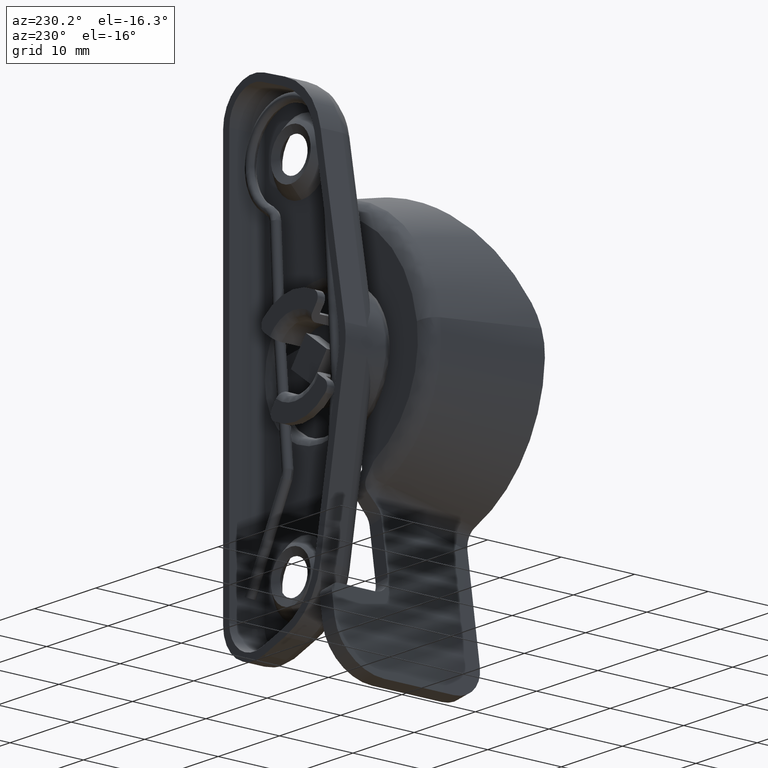
[diagram: clean part render]
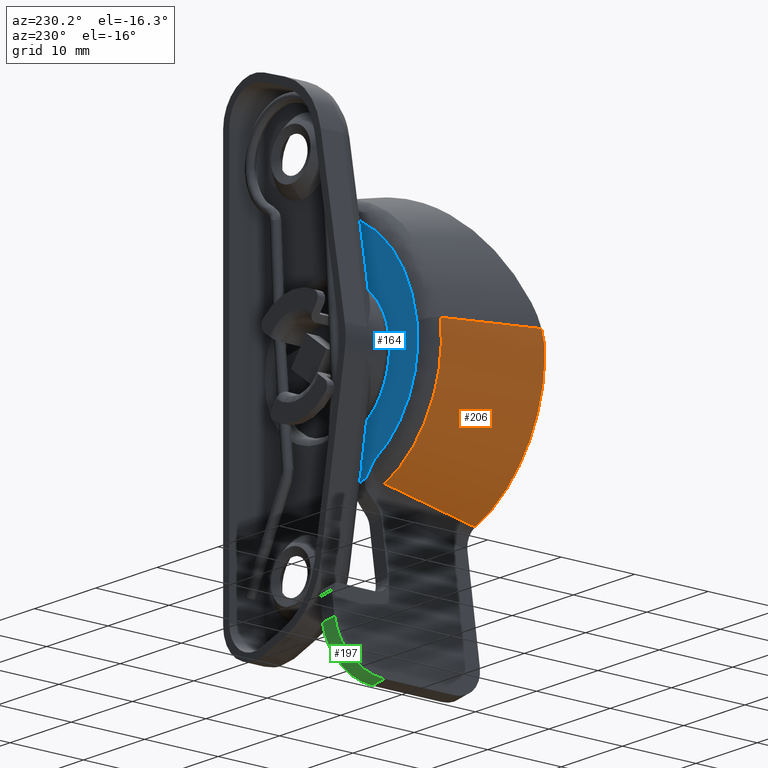
[diagram: same view with three faces highlighted in distinct colors, each labeled with its STEP entity id]
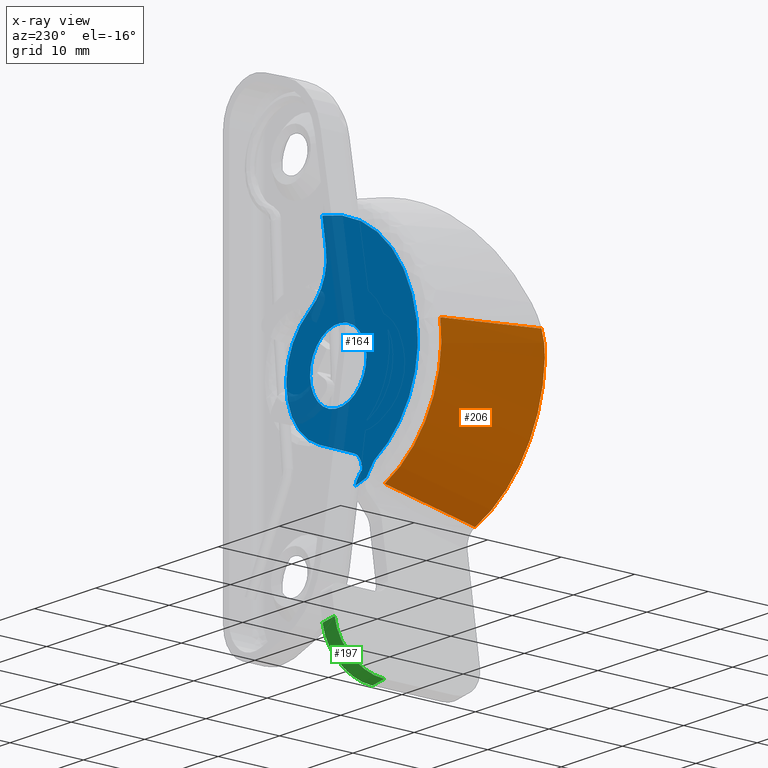
[diagram: x-ray of the same camera — body ghosted, the three highlighted faces saturated]
A machine part, auxiliary view with three faces highlighted in distinct colors.
The next image is the same camera in x-ray (body ghosted, the three faces saturated) — at least one of them is partly hidden behind the body in this view.
Their STEP definitions:

[orange] entity #206 — the highlighted face is a freeform B-spline surface patch.
#206=ADVANCED_FACE('',(#907),#906,.T.);
#906=( BOUNDED_SURFACE() B_SPLINE_SURFACE( 2,1,((#2604,#2605),(#2606,#2607),(#2608,#2609)), .UNSPECIFIED.,.F.,.F.,.F.) B_SPLINE_SURFACE_WITH_KNOTS((3,3),(2,2),(0.00000000000E+00,1.00000000000E+00),(0.00000000000E+00,1.00000000000E+00), .UNSPECIFIED. ) GEOMETRIC_REPRESENTATION_ITEM() RATIONAL_B_SPLINE_SURFACE(((1.00000000000E+00,1.00000000000E+00),(7.74811238974E-01,7.74811238974E-01),(1.00000000000E+00,1.00000000000E+00))) REPRESENTATION_ITEM('') SURFACE() );
#907=FACE_OUTER_BOUND('',#2610,.T.);
#2604=CARTESIAN_POINT('',(-3.67806467886E+01,4.24859288662E-01,2.27269576020E+00));
#2605=CARTESIAN_POINT('',(-3.93429418741E+01,-1.15002167399E+01,2.66667832811E+00));
#2606=CARTESIAN_POINT('',(-3.86350101201E+01,4.24859288662E-01,-9.78729480239E+00));
#2607=CARTESIAN_POINT('',(-4.15187678668E+01,-1.15002167399E+01,-1.14839686849E+01));
#2608=CARTESIAN_POINT('',(-2.71924261746E+01,4.24859288662E-01,-1.40239572136E+01));
#2609=CARTESIAN_POINT('',(-2.80925578305E+01,-1.15002167399E+01,-1.64550765795E+01));
#2610=EDGE_LOOP('',(#4199,#4200,#4201,#4202,#4203,#4204,#4205));
#4199=ORIENTED_EDGE('',*,*,#4860,.T.);
#4200=ORIENTED_EDGE('',*,*,#4811,.F.);
#4201=ORIENTED_EDGE('',*,*,#4806,.T.);
#4202=ORIENTED_EDGE('',*,*,#4999,.F.);
#4203=ORIENTED_EDGE('',*,*,#4879,.F.);
#4204=ORIENTED_EDGE('',*,*,#5000,.F.);
#4205=ORIENTED_EDGE('',*,*,#4817,.F.);
#4806=EDGE_CURVE('',#5286,#5279,#5287,.T.);
#4811=EDGE_CURVE('',#5286,#5319,#5320,.T.);
#4817=EDGE_CURVE('',#5354,#5361,#5362,.T.);
#4860=EDGE_CURVE('',#5354,#5319,#5651,.T.);
#4879=EDGE_CURVE('',#5770,#5437,#5777,.T.);
#4999=EDGE_CURVE('',#5437,#5279,#6583,.T.);
#5000=EDGE_CURVE('',#5361,#5770,#6589,.T.);
#5279=VERTEX_POINT('',#8317);
#5286=VERTEX_POINT('',#8322);
#5287=LINE('',#8323,#8324);
#5319=VERTEX_POINT('',#8365);
#5320=(BOUNDED_CURVE() B_SPLINE_CURVE(3,(#8366,#8367,#8368,#8369),.UNSPECIFIED.,.F.,.F.) B_SPLINE_CURVE_WITH_KNOTS((4,4),(0.00000000000E+00,3.22298693052E-03),.UNSPECIFIED.) CURVE() GEOMETRIC_REPRESENTATION_ITEM() RATIONAL_B_SPLINE_CURVE((1.00000000000E+00,1.00000000000E+00,1.00000000000E+00,1.00000000000E+00)) REPRESENTATION_ITEM('') );
#5354=VERTEX_POINT('',#8390);
#5361=VERTEX_POINT('',#8401);
#5362=(BOUNDED_CURVE() B_SPLINE_CURVE(3,(#8402,#8403,#8404,#8405,#8406,#8407,#8408),.UNSPECIFIED.,.F.,.F.) B_SPLINE_CURVE_WITH_KNOTS((4,3,4),(0.00000000000E+00,4.00000012331E-03,1.17560993783E-02),.UNSPECIFIED.) CURVE() GEOMETRIC_REPRESENTATION_ITEM() RATIONAL_B_SPLINE_CURVE((1.00000000000E+00,1.00000000000E+00,1.00000000000E+00,1.00000000000E+00,1.00000000000E+00,1.00000000000E+00,1.00000000000E+00)) REPRESENTATION_ITEM('') );
#5437=VERTEX_POINT('',#8463);
#5651=CIRCLE('',#8652,1.75467134428E+01);
#5770=VERTEX_POINT('',#8743);
#5777=(BOUNDED_CURVE() B_SPLINE_CURVE(3,(#8748,#8749,#8750,#8751),.UNSPECIFIED.,.F.,.F.) B_SPLINE_CURVE_WITH_KNOTS((4,4),(0.00000000000E+00,3.72828461256E-04),.UNSPECIFIED.) CURVE() GEOMETRIC_REPRESENTATION_ITEM() RATIONAL_B_SPLINE_CURVE((1.00000000000E+00,1.00000000000E+00,1.00000000000E+00,1.00000000000E+00)) REPRESENTATION_ITEM('') );
#6583=CIRCLE('',#9248,1.49543527278E+01);
#6589=(BOUNDED_CURVE() B_SPLINE_CURVE(3,(#9249,#9250,#9251,#9252),.UNSPECIFIED.,.F.,.F.) B_SPLINE_CURVE_WITH_KNOTS((4,4),(0.00000000000E+00,8.52196618869E-05),.UNSPECIFIED.) CURVE() GEOMETRIC_REPRESENTATION_ITEM() RATIONAL_B_SPLINE_CURVE((1.00000000000E+00,1.00000000000E+00,1.00000000000E+00,1.00000000000E+00)) REPRESENTATION_ITEM('') );
#8317=CARTESIAN_POINT('',(-3.67807867464E+01,4.24859288662E-01,2.27178534791E+00));
#8322=CARTESIAN_POINT('',(-3.92898662316E+01,-1.12524375512E+01,2.65742720236E+00));
#8323=CARTESIAN_POINT('',(-3.92898662316E+01,-1.12524375512E+01,2.65742720236E+00));
#8324=VECTOR('',#8325,1.19500402087E+01);
#8325=DIRECTION('',(2.09964104004E-01,9.77176363923E-01,-3.22711763071E-02));
#8365=CARTESIAN_POINT('',(-3.95382031403E+01,-1.15000000000E+01,-5.46427720702E-01));
#8366=CARTESIAN_POINT('',(-3.92898662316E+01,-1.12524375512E+01,2.65742720236E+00));
#8367=CARTESIAN_POINT('',(-3.94888023321E+01,-1.14216001621E+01,1.60517394933E+00));
#8368=CARTESIAN_POINT('',(-3.95719567874E+01,-1.15000000000E+01,5.36932984192E-01));
#8369=CARTESIAN_POINT('',(-3.95382031403E+01,-1.15000000000E+01,-5.46427720702E-01));
#8390=CARTESIAN_POINT('',(-2.81662821626E+01,-1.15000000000E+01,-1.64275414148E+01));
#8401=CARTESIAN_POINT('',(-2.77216384993E+01,-2.26717670756E-02,-1.39217377659E+01));
#8402=CARTESIAN_POINT('',(-2.81662821626E+01,-1.15000000000E+01,-1.64275414148E+01));
#8403=CARTESIAN_POINT('',(-2.81167894239E+01,-1.01981422255E+01,-1.61438255515E+01));
#8404=CARTESIAN_POINT('',(-2.80670187797E+01,-8.89632667037E+00,-1.58599642118E+01));
#8405=CARTESIAN_POINT('',(-2.80169309206E+01,-7.59455908691E+00,-1.55759391207E+01));
#8406=CARTESIAN_POINT('',(-2.79198093366E+01,-5.07039990329E+00,-1.50252075220E+01));
#8407=CARTESIAN_POINT('',(-2.78215037826E+01,-2.54641926814E+00,-1.44738636176E+01));
#8408=CARTESIAN_POINT('',(-2.77216384993E+01,-2.26717670756E-02,-1.39217377659E+01));
#8463=CARTESIAN_POINT('',(-2.76859719750E+01,4.24859288662E-01,-1.38312106559E+01));
#8649=CARTESIAN_POINT('',(-2.20000000000E+01,-1.15000000000E+01,0.00000000000E+00));
#8650=DIRECTION('',(0.00000000000E+00,1.00000000000E+00,0.00000000000E+00));
#8651=DIRECTION('',(1.51914655832E-01,-0.00000000000E+00,9.88393614580E-01));
#8652=AXIS2_PLACEMENT_3D('',#8649,#8650,#8651);
#8743=CARTESIAN_POINT('',(-2.77177183147E+01,6.05441933558E-02,-1.39037898731E+01));
#8748=CARTESIAN_POINT('',(-2.77177183147E+01,6.05441933558E-02,-1.39037898731E+01));
#8749=CARTESIAN_POINT('',(-2.77111138899E+01,1.82002374544E-01,-1.38779564172E+01));
#8750=CARTESIAN_POINT('',(-2.77006443813E+01,3.03441407392E-01,-1.38537174431E+01));
#8751=CARTESIAN_POINT('',(-2.76859719750E+01,4.24859288662E-01,-1.38312106559E+01));
#9245=CARTESIAN_POINT('',(-2.20000000000E+01,4.24859288662E-01,0.00000000000E+00));
#9246=DIRECTION('',(-0.00000000000E+00,1.00000000000E+00,0.00000000000E+00));
#9247=DIRECTION('',(-1.51914655832E-01,-0.00000000000E+00,-9.88393614580E-01));
#9248=AXIS2_PLACEMENT_3D('',#9245,#9246,#9247);
#9249=CARTESIAN_POINT('',(-2.77216384993E+01,-2.26717670756E-02,-1.39217377659E+01));
#9250=CARTESIAN_POINT('',(-2.77205412355E+01,5.05775706139E-03,-1.39156713162E+01));
#9251=CARTESIAN_POINT('',(-2.77192270241E+01,3.27983848120E-02,-1.39096912469E+01));
#9252=CARTESIAN_POINT('',(-2.77177183147E+01,6.05441933558E-02,-1.39037898731E+01));

[blue] entity #164 — the highlighted planar face has unit normal (0, 1, 0).
#164=ADVANCED_FACE('',(#483,#484),#482,.T.);
#482=PLANE('',#2359);
#483=FACE_OUTER_BOUND('',#2360,.T.);
#484=FACE_BOUND('',#2361,.T.);
#2356=CARTESIAN_POINT('',(-3.95886803783E+01,2.00000000000E+00,-1.45502739872E+01));
#2357=DIRECTION('',(-0.00000000000E+00,1.00000000000E+00,0.00000000000E+00));
#2358=DIRECTION('',(1.51914655832E-01,0.00000000000E+00,9.88393614580E-01));
#2359=AXIS2_PLACEMENT_3D('',#2356,#2357,#2358);
#2360=EDGE_LOOP('',(#3979,#3980,#3981,#3982,#3983,#3984,#3985,#3986,#3987,#3988,#3989));
#2361=EDGE_LOOP('',(#3990,#3991));
#3979=ORIENTED_EDGE('',*,*,#4867,.F.);
#3980=ORIENTED_EDGE('',*,*,#4839,.F.);
#3981=ORIENTED_EDGE('',*,*,#4856,.T.);
#3982=ORIENTED_EDGE('',*,*,#4868,.F.);
#3983=ORIENTED_EDGE('',*,*,#4869,.T.);
#3984=ORIENTED_EDGE('',*,*,#4870,.F.);
#3985=ORIENTED_EDGE('',*,*,#4871,.F.);
#3986=ORIENTED_EDGE('',*,*,#4872,.F.);
#3987=ORIENTED_EDGE('',*,*,#4832,.F.);
#3988=ORIENTED_EDGE('',*,*,#4830,.F.);
#3989=ORIENTED_EDGE('',*,*,#4826,.F.);
#3990=ORIENTED_EDGE('',*,*,#4873,.T.);
#3991=ORIENTED_EDGE('',*,*,#4874,.T.);
#4826=EDGE_CURVE('',#5423,#5424,#5425,.T.);
#4830=EDGE_CURVE('',#5424,#5450,#5451,.T.);
#4832=EDGE_CURVE('',#5450,#5463,#5464,.T.);
#4839=EDGE_CURVE('',#5504,#5511,#5512,.T.);
#4856=EDGE_CURVE('',#5504,#5620,#5627,.T.);
#4867=EDGE_CURVE('',#5511,#5423,#5697,.T.);
#4868=EDGE_CURVE('',#5703,#5620,#5704,.T.);
#4869=EDGE_CURVE('',#5703,#5710,#5711,.T.);
#4870=EDGE_CURVE('',#5717,#5710,#5718,.T.);
#4871=EDGE_CURVE('',#5724,#5717,#5725,.T.);
#4872=EDGE_CURVE('',#5463,#5724,#5731,.T.);
#4873=EDGE_CURVE('',#5737,#5738,#5739,.T.);
#4874=EDGE_CURVE('',#5738,#5737,#5745,.T.);
#5423=VERTEX_POINT('',#8447);
#5424=VERTEX_POINT('',#8448);
#5425=(BOUNDED_CURVE() B_SPLINE_CURVE(3,(#8449,#8450,#8451,#8452),.UNSPECIFIED.,.F.,.F.) B_SPLINE_CURVE_WITH_KNOTS((4,4),(-1.98115376108E-03,-0.00000000000E+00),.UNSPECIFIED.) CURVE() GEOMETRIC_REPRESENTATION_ITEM() RATIONAL_B_SPLINE_CURVE((1.00000000000E+00,1.00000000000E+00,1.00000000000E+00,1.00000000000E+00)) REPRESENTATION_ITEM('') );
#5450=VERTEX_POINT('',#8484);
#5451=CIRCLE('',#8488,1.39595795182E+01);
#5463=VERTEX_POINT('',#8495);
#5464=(BOUNDED_CURVE() B_SPLINE_CURVE(3,(#8496,#8497,#8498,#8499,#8500,#8501,#8502,#8503),.UNSPECIFIED.,.F.,.F.) B_SPLINE_CURVE_WITH_KNOTS((4,2,2,4),(7.43523292652E-04,1.21947824087E-03,1.69543318910E-03,2.64734308554E-03),.UNSPECIFIED.) CURVE() GEOMETRIC_REPRESENTATION_ITEM() RATIONAL_B_SPLINE_CURVE((1.00000000000E+00,1.00000000000E+00,1.00000000000E+00,1.00000000000E+00,1.00000000000E+00,1.00000000000E+00,1.00000000000E+00,1.00000000000E+00)) REPRESENTATION_ITEM('') );
#5504=VERTEX_POINT('',#8547);
#5511=VERTEX_POINT('',#8558);
#5512=CIRCLE('',#8562,1.78000000000E+01);
#5620=VERTEX_POINT('',#8632);
#5627=LINE('',#8636,#8637);
#5697=CIRCLE('',#8680,1.30000000000E+01);
#5703=VERTEX_POINT('',#8681);
#5704=CIRCLE('',#8685,6.00000000000E+00);
#5710=VERTEX_POINT('',#8686);
#5711=CIRCLE('',#8690,8.50000000000E+00);
#5717=VERTEX_POINT('',#8691);
#5718=LINE('',#8692,#8693);
#5724=VERTEX_POINT('',#8695);
#5725=CIRCLE('',#8699,2.00000000000E+00);
#5731=LINE('',#8700,#8701);
#5737=VERTEX_POINT('',#8703);
#5738=VERTEX_POINT('',#8704);
#5739=CIRCLE('',#8708,4.60000000000E+00);
#5745=CIRCLE('',#8712,4.60000000000E+00);
#8447=CARTESIAN_POINT('',(-2.78211669948E+01,2.00000000000E+00,-1.16238554197E+01));
#8448=CARTESIAN_POINT('',(-2.65956760878E+01,2.00000000000E+00,-1.31814119737E+01));
#8449=CARTESIAN_POINT('',(-2.78211669948E+01,2.00000000000E+00,-1.16238554197E+01));
#8450=CARTESIAN_POINT('',(-2.74302417071E+01,2.00000000000E+00,-1.21561008727E+01));
#8451=CARTESIAN_POINT('',(-2.69540312034E+01,2.00000000000E+00,-1.26241830993E+01));
#8452=CARTESIAN_POINT('',(-2.65956760878E+01,2.00000000000E+00,-1.31814119737E+01));
#8484=CARTESIAN_POINT('',(-2.47524483367E+01,2.00000000000E+00,-1.36855357395E+01));
#8485=CARTESIAN_POINT('',(-2.20000000000E+01,2.00000000000E+00,7.84833924470E-14));
#8486=DIRECTION('',(0.00000000000E+00,-1.00000000000E+00,0.00000000000E+00));
#8487=DIRECTION('',(-1.51914655832E-01,-0.00000000000E+00,-9.88393614580E-01));
#8488=AXIS2_PLACEMENT_3D('',#8485,#8486,#8487);
#8495=CARTESIAN_POINT('',(-2.58941528197E+01,2.00000000000E+00,-1.21710123606E+01));
#8496=CARTESIAN_POINT('',(-2.47524483367E+01,2.00000000000E+00,-1.36855357395E+01));
#8497=CARTESIAN_POINT('',(-2.48157777723E+01,2.00000000000E+00,-1.35400561023E+01));
#8498=CARTESIAN_POINT('',(-2.48875459041E+01,2.00000000000E+00,-1.33981151021E+01));
#8499=CARTESIAN_POINT('',(-2.50485315837E+01,2.00000000000E+00,-1.31215502456E+01));
#8500=CARTESIAN_POINT('',(-2.51378587786E+01,2.00000000000E+00,-1.29870579300E+01));
#8501=CARTESIAN_POINT('',(-2.54255219142E+01,2.00000000000E+00,-1.26050796780E+01));
#8502=CARTESIAN_POINT('',(-2.56452199174E+01,2.00000000000E+00,-1.23751196844E+01));
#8503=CARTESIAN_POINT('',(-2.58941528197E+01,2.00000000000E+00,-1.21710123606E+01));
#8547=CARTESIAN_POINT('',(-1.93960923963E+01,2.00000000000E+00,1.69416547359E+01));
#8558=CARTESIAN_POINT('',(-3.48491169895E+01,2.00000000000E+00,1.97489052588E+00));
#8559=CARTESIAN_POINT('',(-1.72557106500E+01,2.00000000000E+00,-7.29190347995E-01));
#8560=DIRECTION('',(0.00000000000E+00,-1.00000000000E+00,0.00000000000E+00));
#8561=DIRECTION('',(-1.51914655832E-01,-0.00000000000E+00,-9.88393614580E-01));
#8562=AXIS2_PLACEMENT_3D('',#8559,#8560,#8561);
#8632=CARTESIAN_POINT('',(-1.99946690004E+01,2.00000000000E+00,1.30471700986E+01));
#8636=CARTESIAN_POINT('',(-1.93960923963E+01,2.00000000000E+00,1.69416547359E+01));
#8637=VECTOR('',#8638,3.94021630641E+00);
#8638=DIRECTION('',(-1.51914655832E-01,0.00000000000E+00,-9.88393614580E-01));
#8677=CARTESIAN_POINT('',(-2.20000000000E+01,2.00000000000E+00,0.00000000000E+00));
#8678=DIRECTION('',(0.00000000000E+00,-1.00000000000E+00,0.00000000000E+00));
#8679=DIRECTION('',(-1.51914655832E-01,-0.00000000000E+00,-9.88393614580E-01));
#8680=AXIS2_PLACEMENT_3D('',#8677,#8678,#8679);
#8681=CARTESIAN_POINT('',(-1.73480422179E+01,2.00000000000E+00,7.11402057867E+00));
#8682=CARTESIAN_POINT('',(-1.40643073129E+01,2.00000000000E+00,1.21356821636E+01));
#8683=DIRECTION('',(-0.00000000000E+00,1.00000000000E+00,0.00000000000E+00));
#8684=DIRECTION('',(-1.51914655832E-01,-0.00000000000E+00,-9.88393614580E-01));
#8685=AXIS2_PLACEMENT_3D('',#8682,#8683,#8684);
#8686=CARTESIAN_POINT('',(-1.89176037229E+01,2.00000000000E+00,-7.92141611019E+00));
#8687=CARTESIAN_POINT('',(-2.20000000000E+01,2.00000000000E+00,0.00000000000E+00));
#8688=DIRECTION('',(0.00000000000E+00,1.00000000000E+00,0.00000000000E+00));
#8689=DIRECTION('',(1.51914655832E-01,-0.00000000000E+00,9.88393614580E-01));
#8690=AXIS2_PLACEMENT_3D('',#8687,#8688,#8689);
#8691=CARTESIAN_POINT('',(-2.45671377036E+01,2.00000000000E+00,-1.01197733568E+01));
#8692=CARTESIAN_POINT('',(-2.45671377036E+01,2.00000000000E+00,-1.01197733568E+01));
#8693=VECTOR('',#8694,6.06217855090E+00);
#8694=DIRECTION('',(9.31931307081E-01,0.00000000000E+00,3.62634856132E-01));
#8695=CARTESIAN_POINT('',(-2.58186552205E+01,2.00000000000E+00,-1.16798066593E+01));
#8696=CARTESIAN_POINT('',(-2.38418679913E+01,2.00000000000E+00,-1.19836359710E+01));
#8697=DIRECTION('',(-0.00000000000E+00,1.00000000000E+00,0.00000000000E+00));
#8698=DIRECTION('',(-1.51914655832E-01,-0.00000000000E+00,-9.88393614580E-01));
#8699=AXIS2_PLACEMENT_3D('',#8696,#8697,#8698);
#8700=CARTESIAN_POINT('',(-2.58941528197E+01,2.00000000000E+00,-1.21710123606E+01));
#8701=VECTOR('',#8702,4.96973770347E-01);
#8702=DIRECTION('',(1.51914655832E-01,0.00000000000E+00,9.88393614580E-01));
#8703=CARTESIAN_POINT('',(-2.13011925832E+01,2.00000000000E+00,4.54661062707E+00));
#8704=CARTESIAN_POINT('',(-2.26988074168E+01,2.00000000000E+00,-4.54661062707E+00));
#8705=CARTESIAN_POINT('',(-2.20000000000E+01,2.00000000000E+00,0.00000000000E+00));
#8706=DIRECTION('',(0.00000000000E+00,-1.00000000000E+00,0.00000000000E+00));
#8707=DIRECTION('',(1.51914655832E-01,0.00000000000E+00,9.88393614580E-01));
#8708=AXIS2_PLACEMENT_3D('',#8705,#8706,#8707);
#8709=CARTESIAN_POINT('',(-2.20000000000E+01,2.00000000000E+00,0.00000000000E+00));
#8710=DIRECTION('',(0.00000000000E+00,-1.00000000000E+00,0.00000000000E+00));
#8711=DIRECTION('',(1.51914655832E-01,0.00000000000E+00,9.88393614580E-01));
#8712=AXIS2_PLACEMENT_3D('',#8709,#8710,#8711);

[green] entity #197 — the highlighted cylindrical surface (partial cylindrical patch) has radius 6 mm, axis along (-0.9884, 0, 0.1519).
#197=ADVANCED_FACE('',(#816),#815,.T.);
#815=CYLINDRICAL_SURFACE('',#2559,6.00000000000E+00);
#816=FACE_OUTER_BOUND('',#2560,.T.);
#2556=CARTESIAN_POINT('',(-2.66333970029E+01,2.00000000000E+00,-3.01460052447E+01));
#2557=DIRECTION('',(-9.88393614580E-01,-0.00000000000E+00,1.51914655832E-01));
#2558=DIRECTION('',(-1.51914655832E-01,-0.00000000000E+00,-9.88393614580E-01));
#2559=AXIS2_PLACEMENT_3D('',#2556,#2557,#2558);
#2560=EDGE_LOOP('',(#4148,#4149,#4150,#4151));
#4148=ORIENTED_EDGE('',*,*,#4983,.T.);
#4149=ORIENTED_EDGE('',*,*,#4980,.T.);
#4150=ORIENTED_EDGE('',*,*,#4864,.T.);
#4151=ORIENTED_EDGE('',*,*,#4984,.T.);
#4864=EDGE_CURVE('',#5677,#5670,#5678,.T.);
#4980=EDGE_CURVE('',#6460,#5677,#6461,.T.);
#4983=EDGE_CURVE('',#6480,#6460,#6481,.T.);
#4984=EDGE_CURVE('',#5670,#6480,#6487,.T.);
#5670=VERTEX_POINT('',#8660);
#5677=VERTEX_POINT('',#8664);
#5678=CIRCLE('',#8668,6.00000000000E+00);
#6460=VERTEX_POINT('',#9171);
#6461=LINE('',#9172,#9173);
#6480=VERTEX_POINT('',#9182);
#6481=CIRCLE('',#9186,6.00000000000E+00);
#6487=LINE('',#9187,#9188);
#8660=CARTESIAN_POINT('',(-2.75448855579E+01,2.00000000003E+00,-3.60763668369E+01));
#8664=CARTESIAN_POINT('',(-2.66333976230E+01,8.00000000000E+00,-3.01460051494E+01));
#8665=CARTESIAN_POINT('',(-2.66333970029E+01,2.00000000000E+00,-3.01460052447E+01));
#8666=DIRECTION('',(-9.88393614580E-01,-0.00000000000E+00,1.51914655832E-01));
#8667=DIRECTION('',(1.51914655832E-01,-0.00000000000E+00,9.88393614580E-01));
#8668=AXIS2_PLACEMENT_3D('',#8665,#8666,#8667);
#9171=CARTESIAN_POINT('',(-2.86101848521E+01,8.00000000000E+00,-2.98421758377E+01));
#9172=CARTESIAN_POINT('',(-2.86101848521E+01,8.00000000000E+00,-2.98421758377E+01));
#9173=VECTOR('',#9174,2.00000000000E+00);
#9174=DIRECTION('',(9.88393614580E-01,0.00000000000E+00,-1.51914655832E-01));
#9182=CARTESIAN_POINT('',(-2.95216727871E+01,2.00000000003E+00,-3.57725375252E+01));
#9183=CARTESIAN_POINT('',(-2.86101848521E+01,2.00000000000E+00,-2.98421758377E+01));
#9184=DIRECTION('',(9.88393614580E-01,0.00000000000E+00,-1.51914655832E-01));
#9185=DIRECTION('',(1.51914655832E-01,-0.00000000000E+00,9.88393614580E-01));
#9186=AXIS2_PLACEMENT_3D('',#9183,#9184,#9185);
#9187=CARTESIAN_POINT('',(-2.75448855579E+01,2.00000000003E+00,-3.60763668369E+01));
#9188=VECTOR('',#9189,2.00000000000E+00);
#9189=DIRECTION('',(-9.88393614580E-01,0.00000000000E+00,1.51914655832E-01));